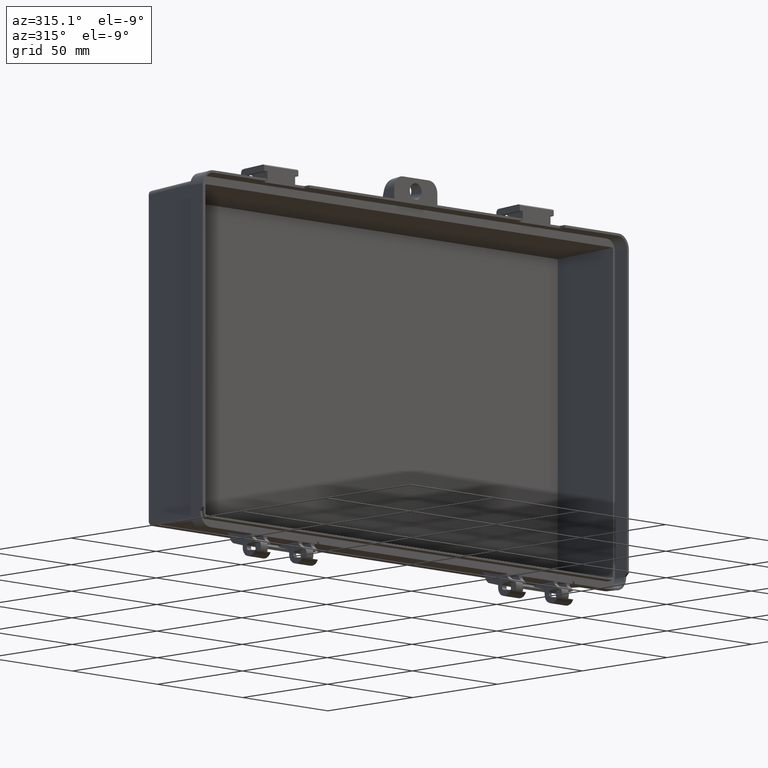
[diagram: clean part render]
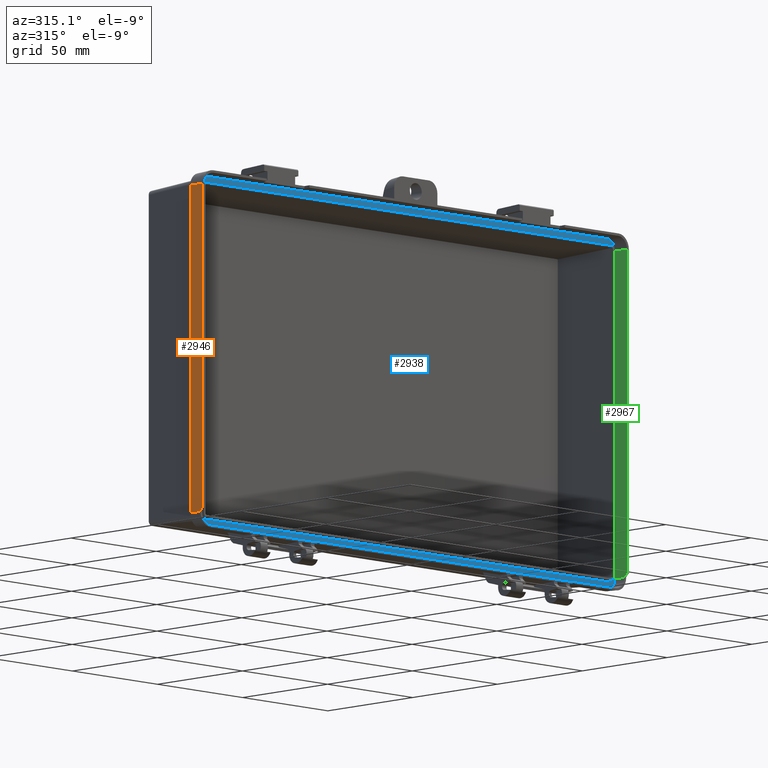
[diagram: same view with three faces highlighted in distinct colors, each labeled with its STEP entity id]
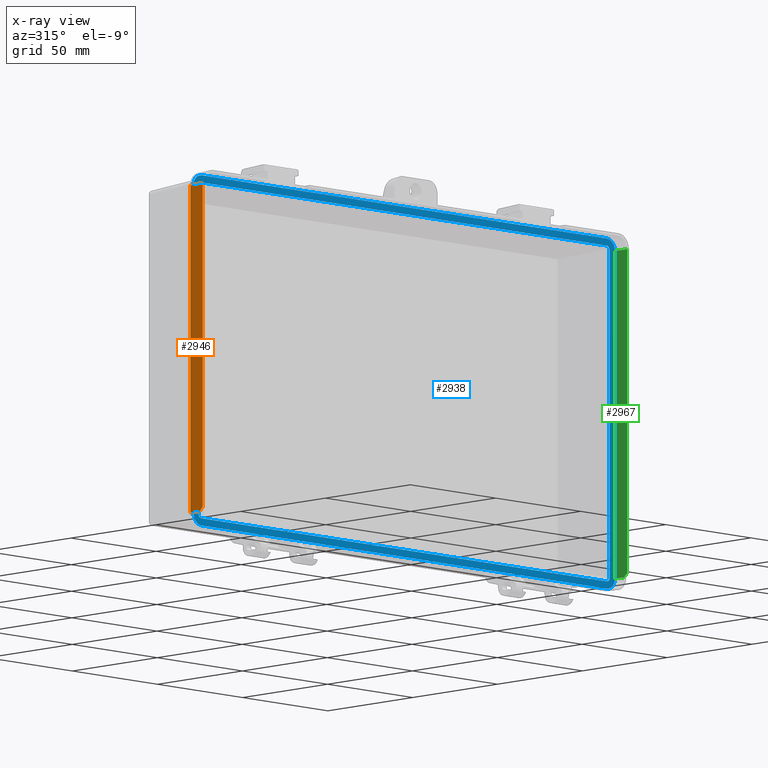
[diagram: x-ray of the same camera — body ghosted, the three highlighted faces saturated]
A machine part, auxiliary view with three faces highlighted in distinct colors.
The next image is the same camera in x-ray (body ghosted, the three faces saturated) — at least one of them is partly hidden behind the body in this view.
Their STEP definitions:

[orange] entity #2946 — the highlighted planar face has unit normal (-0.9986, 0.0523, 0).
#16 = VERTEX_POINT ( 'NONE', #3828 ) ;
#350 = CARTESIAN_POINT ( 'NONE',  ( -125.0524077792830000, -0.9999999999999831200, -68.73550952893730000 ) ) ;
#393 = CARTESIAN_POINT ( 'NONE',  ( -124.7221525821517600, 5.301644558294509800, 68.99999999999998600 ) ) ;
#579 = VERTEX_POINT ( 'NONE', #393 ) ;
#604 = VERTEX_POINT ( 'NONE', #350 ) ;
#616 = ORIENTED_EDGE ( 'NONE', *, *, #2498, .T. ) ;
#623 = ORIENTED_EDGE ( 'NONE', *, *, #2538, .F. ) ;
#697 = ORIENTED_EDGE ( 'NONE', *, *, #13428, .F. ) ;
#711 = ORIENTED_EDGE ( 'NONE', *, *, #13474, .T. ) ;
#714 = ORIENTED_EDGE ( 'NONE', *, *, #13450, .T. ) ;
#755 = ORIENTED_EDGE ( 'NONE', *, *, #13432, .F. ) ;
#2498 = EDGE_CURVE ( 'NONE', #13790, #16, #9550, .T. ) ;
#2538 = EDGE_CURVE ( 'NONE', #13759, #13806, #9579, .T. ) ;
#2946 = ADVANCED_FACE ( 'NONE', ( #4580 ), #5373, .T. ) ;
#3828 = CARTESIAN_POINT ( 'NONE',  ( -125.0524077792830000, -0.9999999999999831200, -68.99999999999998600 ) ) ;
#4072 = VECTOR ( 'NONE', #7004, 1000.000000000000100 ) ;
#4143 = VECTOR ( 'NONE', #6828, 1000.000000000000000 ) ;
#4580 = FACE_OUTER_BOUND ( 'NONE', #13484, .T. ) ;
#5373 = PLANE ( 'NONE',  #11806 ) ;
#5374 = CARTESIAN_POINT ( 'NONE',  ( -124.9999999999999700, 0.0000000000000000000, -68.99999999999998600 ) ) ;
#5375 = DIRECTION ( 'NONE',  ( -0.9986295347545739400, 0.05233595624294395300, 0.0000000000000000000 ) ) ;
#5376 = DIRECTION ( 'NONE',  ( -0.05233595624294395300, -0.9986295347545739400, 0.0000000000000000000 ) ) ;
#6800 = CARTESIAN_POINT ( 'NONE',  ( -125.1310194482076500, -2.500000000000000000, 68.99999999999998600 ) ) ;
#6828 = DIRECTION ( 'NONE',  ( 1.005636797667714400E-016, 0.0000000000000000000, -1.000000000000000000 ) ) ;
#6896 = CARTESIAN_POINT ( 'NONE',  ( -124.9999999999999700, 0.0000000000000000000, -68.99999999999998600 ) ) ;
#7004 = DIRECTION ( 'NONE',  ( -0.05233595624294395300, -0.9986295347545739400, -0.0000000000000000000 ) ) ;
#8461 = CARTESIAN_POINT ( 'NONE',  ( -125.0000000000000000, -3.626559582763564200E-016, 68.99999999999998600 ) ) ;
#8462 = DIRECTION ( 'NONE',  ( -0.05233595624294395300, -0.9986295347545739400, -0.0000000000000000000 ) ) ;
#8482 = CARTESIAN_POINT ( 'NONE',  ( -125.0524077792830000, -0.9999999999999831200, -68.99999999999998600 ) ) ;
#8483 = DIRECTION ( 'NONE',  ( 6.273334786060752500E-018, 1.197023585407051700E-016, -1.000000000000000000 ) ) ;
#8538 = CARTESIAN_POINT ( 'NONE',  ( -124.7221525821517400, 5.301644558294508000, -68.99999999999998600 ) ) ;
#8539 = DIRECTION ( 'NONE',  ( -0.0000000000000000000, -0.0000000000000000000, -1.000000000000000000 ) ) ;
#8591 = CARTESIAN_POINT ( 'NONE',  ( -125.0192467791621300, -0.3672504239915259600, -69.36825910494576400 ) ) ;
#8592 = DIRECTION ( 'NONE',  ( -0.03703247672027207300, -0.7066217501846229200, 0.7066217501846252500 ) ) ;
#8675 = CARTESIAN_POINT ( 'NONE',  ( -125.1310194482076500, -2.500000000000000000, 68.99999999999998600 ) ) ;
#8683 = CARTESIAN_POINT ( 'NONE',  ( -124.7221525821517400, 5.301644558294508000, -68.99999999999998600 ) ) ;
#8687 = CARTESIAN_POINT ( 'NONE',  ( -125.1310194482076500, -2.500000000000000000, -67.23550952893730000 ) ) ;
#8834 = VECTOR ( 'NONE', #8462, 1000.000000000000100 ) ;
#8837 = VECTOR ( 'NONE', #8483, 1000.000000000000000 ) ;
#8852 = VECTOR ( 'NONE', #8539, 1000.000000000000000 ) ;
#8874 = VECTOR ( 'NONE', #8592, 1000.000000000000000 ) ;
#8956 = LINE ( 'NONE', #8461, #8834 ) ;
#8958 = LINE ( 'NONE', #8482, #8837 ) ;
#8973 = LINE ( 'NONE', #8538, #8852 ) ;
#8994 = LINE ( 'NONE', #8591, #8874 ) ;
#9550 = LINE ( 'NONE', #6896, #4072 ) ;
#9579 = LINE ( 'NONE', #6800, #4143 ) ;
#11806 = AXIS2_PLACEMENT_3D ( 'NONE', #5374, #5375, #5376 ) ;
#13428 = EDGE_CURVE ( 'NONE', #579, #13759, #8956, .T. ) ;
#13432 = EDGE_CURVE ( 'NONE', #604, #16, #8958, .T. ) ;
#13450 = EDGE_CURVE ( 'NONE', #579, #13790, #8973, .T. ) ;
#13474 = EDGE_CURVE ( 'NONE', #604, #13806, #8994, .T. ) ;
#13484 = EDGE_LOOP ( 'NONE', ( #755, #711, #623, #697, #714, #616 ) ) ;
#13759 = VERTEX_POINT ( 'NONE', #8675 ) ;
#13790 = VERTEX_POINT ( 'NONE', #8683 ) ;
#13806 = VERTEX_POINT ( 'NONE', #8687 ) ;

[blue] entity #2938 — the highlighted planar face has unit normal (0, -1, 0).
#422 = CARTESIAN_POINT ( 'NONE',  ( -120.7194994386596400, 4.400000000000012800, 69.02018467128264900 ) ) ;
#426 = CARTESIAN_POINT ( 'NONE',  ( -119.0201846712820400, 4.400000000000020800, 70.71949943865971000 ) ) ;
#438 = VERTEX_POINT ( 'NONE', #3824 ) ;
#463 = VERTEX_POINT ( 'NONE', #3906 ) ;
#516 = VERTEX_POINT ( 'NONE', #3844 ) ;
#571 = VERTEX_POINT ( 'NONE', #422 ) ;
#580 = VERTEX_POINT ( 'NONE', #426 ) ;
#955 = VERTEX_POINT ( 'NONE', #6518 ) ;
#979 = VERTEX_POINT ( 'NONE', #6746 ) ;
#1038 = VERTEX_POINT ( 'NONE', #6657 ) ;
#1095 = VERTEX_POINT ( 'NONE', #6391 ) ;
#1108 = VERTEX_POINT ( 'NONE', #6644 ) ;
#2443 = EDGE_CURVE ( 'NONE', #13705, #13706, #9500, .T. ) ;
#2505 = EDGE_CURVE ( 'NONE', #13848, #13682, #9556, .T. ) ;
#2517 = EDGE_CURVE ( 'NONE', #13773, #13705, #4078, .T. ) ;
#2527 = EDGE_CURVE ( 'NONE', #13706, #13827, #4083, .T. ) ;
#2938 = ADVANCED_FACE ( 'NONE', ( #4557, #4558 ), #5289, .T. ) ;
#3521 = B_SPLINE_CURVE_WITH_KNOTS ( 'NONE', 3,
 ( #8375, #8376, #8377, #8378, #8379, #8380, #8381, #8382, #8383, #8384, #8385 ),
 .UNSPECIFIED., .F., .F.,
 ( 4, 1, 1, 1, 1, 1, 1, 1, 4 ),
 ( 0.0000000000000000000, 0.1399999999999835300, 0.2799999999999943600, 0.4199999999999883800, 0.5600000000000121500, 0.6699999999938605100, 0.7799999999999880400, 0.8899999999999694800, 1.000000000000000000 ),
 .UNSPECIFIED. ) ;
#3525 = B_SPLINE_CURVE_WITH_KNOTS ( 'NONE', 3,
 ( #8362, #8363, #8364, #8365, #8366, #8367, #8368, #8369, #8370, #8371, #8372 ),
 .UNSPECIFIED., .F., .F.,
 ( 4, 1, 1, 1, 1, 1, 1, 1, 4 ),
 ( 0.0000000000000000000, 0.1399999999999924900, 0.2799999999999939800, 0.4200000000000097000, 0.5599999999999894000, 0.6699999999938627300, 0.7799999999999879300, 0.8900000000000096700, 1.000000000000000000 ),
 .UNSPECIFIED. ) ;
#3538 = B_SPLINE_CURVE_WITH_KNOTS ( 'NONE', 3,
 ( #8349, #8350, #8351, #8352, #8353, #8354, #8355, #8356, #8357, #8358, #8359 ),
 .UNSPECIFIED., .F., .F.,
 ( 4, 1, 1, 1, 1, 1, 1, 1, 4 ),
 ( 0.0000000000000000000, 0.1400000000000253000, 0.2800000000000007500, 0.4200000000000083100, 0.5599999999999765200, 0.6699999999938340800, 0.7800000000000130200, 0.8900000000000478600, 1.000000000000000000 ),
 .UNSPECIFIED. ) ;
#3561 = B_SPLINE_CURVE_WITH_KNOTS ( 'NONE', 3,
 ( #8388, #8389, #8390, #8391, #8392, #8393, #8394, #8395, #8396, #8397, #8398 ),
 .UNSPECIFIED., .F., .F.,
 ( 4, 1, 1, 1, 1, 1, 1, 1, 4 ),
 ( 0.0000000000000000000, 0.1399999999999796400, 0.2800000000000421600, 0.4199999999999869400, 0.5600000000000232600, 0.6699999999938735000, 0.7800000000000039100, 0.8900000000000205500, 1.000000000000000000 ),
 .UNSPECIFIED. ) ;
#3824 = CARTESIAN_POINT ( 'NONE',  ( 119.0201846712821200, 4.400000000000005700, -70.71949943865971000 ) ) ;
#3844 = CARTESIAN_POINT ( 'NONE',  ( 120.7194994386596800, 4.400000000000000400, -69.02018467128247900 ) ) ;
#3906 = CARTESIAN_POINT ( 'NONE',  ( 123.7694057711545800, 4.400000000000000400, 68.99999999999998600 ) ) ;
#4057 = VECTOR ( 'NONE', #7016, 1000.000000000000000 ) ;
#4078 = CIRCLE ( 'NONE', #4081, 4.769405771154603200 ) ;
#4081 = AXIS2_PLACEMENT_3D ( 'NONE', #6875, #6995, #6966 ) ;
#4083 = CIRCLE ( 'NONE', #4131, 4.769405771154616500 ) ;
#4125 = VECTOR ( 'NONE', #6720, 1000.000000000000000 ) ;
#4131 = AXIS2_PLACEMENT_3D ( 'NONE', #6955, #6850, #7005 ) ;
#4557 = FACE_OUTER_BOUND ( 'NONE', #13783, .T. ) ;
#4558 = FACE_BOUND ( 'NONE', #13697, .T. ) ;
#5289 = PLANE ( 'NONE',  #11774 ) ;
#5290 = CARTESIAN_POINT ( 'NONE',  ( 119.0000000000000100, 4.400000000000000400, 68.99999999999998600 ) ) ;
#5291 = DIRECTION ( 'NONE',  ( 0.0000000000000000000, -1.000000000000000000, 0.0000000000000000000 ) ) ;
#5292 = DIRECTION ( 'NONE',  ( 0.0000000000000000000, -0.0000000000000000000, -1.000000000000000000 ) ) ;
#6391 = CARTESIAN_POINT ( 'NONE',  ( -120.7194994386596400, 4.400000000000012800, -69.02018467128215200 ) ) ;
#6518 = CARTESIAN_POINT ( 'NONE',  ( -123.7694057711546200, 4.400000000000000400, 68.99999999999998600 ) ) ;
#6644 = CARTESIAN_POINT ( 'NONE',  ( 120.7194994386596700, 4.400000000000000400, 69.02018467128233700 ) ) ;
#6657 = CARTESIAN_POINT ( 'NONE',  ( 119.0201846712823500, 4.400000000000000400, 70.71949943865969600 ) ) ;
#6706 = CARTESIAN_POINT ( 'NONE',  ( 119.0000000000000100, 4.400000000000000400, -73.76940577115458100 ) ) ;
#6720 = DIRECTION ( 'NONE',  ( 1.000000000000000000, 0.0000000000000000000, 0.0000000000000000000 ) ) ;
#6746 = CARTESIAN_POINT ( 'NONE',  ( -119.0201846712825500, 4.400000000000005700, -70.71949943865971000 ) ) ;
#6844 = CARTESIAN_POINT ( 'NONE',  ( 119.0000000000000100, 4.400000000000000400, 73.76940577115458100 ) ) ;
#6850 = DIRECTION ( 'NONE',  ( 0.0000000000000000000, -1.000000000000000000, 0.0000000000000000000 ) ) ;
#6875 = CARTESIAN_POINT ( 'NONE',  ( -119.0000000000000100, 4.400000000000000400, -68.99999999999998600 ) ) ;
#6955 = CARTESIAN_POINT ( 'NONE',  ( 119.0000000000000100, 4.400000000000000400, -68.99999999999998600 ) ) ;
#6966 = DIRECTION ( 'NONE',  ( 0.0000000000000000000, 0.0000000000000000000, -1.000000000000000000 ) ) ;
#6995 = DIRECTION ( 'NONE',  ( 0.0000000000000000000, -1.000000000000000000, 0.0000000000000000000 ) ) ;
#7005 = DIRECTION ( 'NONE',  ( 0.0000000000000000000, 0.0000000000000000000, -1.000000000000000000 ) ) ;
#7016 = DIRECTION ( 'NONE',  ( -1.000000000000000000, 0.0000000000000000000, 1.166200656118862000E-016 ) ) ;
#8337 = CARTESIAN_POINT ( 'NONE',  ( 119.0000000000000100, 4.400000000000000400, 68.99999999999998600 ) ) ;
#8338 = DIRECTION ( 'NONE',  ( 0.0000000000000000000, -1.000000000000000000, 0.0000000000000000000 ) ) ;
#8339 = DIRECTION ( 'NONE',  ( 0.0000000000000000000, 0.0000000000000000000, -1.000000000000000000 ) ) ;
#8340 = CARTESIAN_POINT ( 'NONE',  ( -119.0000000000000100, 4.400000000000000400, 68.99999999999998600 ) ) ;
#8341 = DIRECTION ( 'NONE',  ( 0.0000000000000000000, -1.000000000000000000, 0.0000000000000000000 ) ) ;
#8342 = DIRECTION ( 'NONE',  ( 0.0000000000000000000, 0.0000000000000000000, -1.000000000000000000 ) ) ;
#8343 = CARTESIAN_POINT ( 'NONE',  ( -123.7694057711546200, 4.400000000000000400, 68.99999999999992900 ) ) ;
#8344 = DIRECTION ( 'NONE',  ( 3.016910393003143800E-016, 0.0000000000000000000, -1.000000000000000000 ) ) ;
#8345 = CARTESIAN_POINT ( 'NONE',  ( 123.7694057711545800, 4.400000000000000400, 68.99999999999998600 ) ) ;
#8346 = DIRECTION ( 'NONE',  ( -3.016910393003143800E-016, 0.0000000000000000000, 1.000000000000000000 ) ) ;
#8347 = CARTESIAN_POINT ( 'NONE',  ( -120.7194994386596400, 4.400000000000012800, -69.02018467128215200 ) ) ;
#8348 = DIRECTION ( 'NONE',  ( 0.0000000000000000000, 0.0000000000000000000, 1.000000000000000000 ) ) ;
#8349 = CARTESIAN_POINT ( 'NONE',  ( -120.7194994386596400, 4.400000000000012800, 69.02018467128264900 ) ) ;
#8350 = CARTESIAN_POINT ( 'NONE',  ( -120.7194994386596000, 4.400000000000019900, 69.13617567322330600 ) ) ;
#8351 = CARTESIAN_POINT ( 'NONE',  ( -120.6967184270742300, 4.400000000000029700, 69.36678632132466800 ) ) ;
#8352 = CARTESIAN_POINT ( 'NONE',  ( -120.5821789513088000, 4.400000000000030600, 69.72574467749308300 ) ) ;
#8353 = CARTESIAN_POINT ( 'NONE',  ( -120.3823881399130300, 4.400000000000019900, 70.06154282737433900 ) ) ;
#8354 = CARTESIAN_POINT ( 'NONE',  ( -120.1259434806461400, 4.400000000000035900, 70.32681777469571200 ) ) ;
#8355 = CARTESIAN_POINT ( 'NONE',  ( -119.8469567738287500, 4.400000000000019900, 70.51528320480066700 ) ) ;
#8356 = CARTESIAN_POINT ( 'NONE',  ( -119.5721384384311800, 4.400000000000019900, 70.63649789084058700 ) ) ;
#8357 = CARTESIAN_POINT ( 'NONE',  ( -119.2907663207907700, 4.400000000000032300, 70.70552766913648700 ) ) ;
#8358 = CARTESIAN_POINT ( 'NONE',  ( -119.1107030366297300, 4.400000000000020800, 70.71949943865969600 ) ) ;
#8359 = CARTESIAN_POINT ( 'NONE',  ( -119.0201846712820400, 4.400000000000020800, 70.71949943865971000 ) ) ;
#8360 = CARTESIAN_POINT ( 'NONE',  ( 119.0201846712823500, 4.400000000000000400, 70.71949943865969600 ) ) ;
#8361 = DIRECTION ( 'NONE',  ( -1.000000000000000000, -0.0000000000000000000, -0.0000000000000000000 ) ) ;
#8362 = CARTESIAN_POINT ( 'NONE',  ( 119.0201846712823500, 4.400000000000000400, 70.71949943865969600 ) ) ;
#8363 = CARTESIAN_POINT ( 'NONE',  ( 119.1361756732229400, 4.400000000000001200, 70.71949943865972400 ) ) ;
#8364 = CARTESIAN_POINT ( 'NONE',  ( 119.3667863213242000, 4.400000000000006600, 70.69671842707437300 ) ) ;
#8365 = CARTESIAN_POINT ( 'NONE',  ( 119.7257446774927300, 4.399999999999987900, 70.58217895130897500 ) ) ;
#8366 = CARTESIAN_POINT ( 'NONE',  ( 120.0615428273742100, 4.400000000000012800, 70.38238813991321800 ) ) ;
#8367 = CARTESIAN_POINT ( 'NONE',  ( 120.3268177746955400, 4.400000000000003900, 70.12594348064628500 ) ) ;
#8368 = CARTESIAN_POINT ( 'NONE',  ( 120.5152832048007000, 4.400000000000004800, 69.84695677382869400 ) ) ;
#8369 = CARTESIAN_POINT ( 'NONE',  ( 120.6364978908405000, 4.399999999999996800, 69.57213843843156600 ) ) ;
#8370 = CARTESIAN_POINT ( 'NONE',  ( 120.7055276691363600, 4.400000000000017200, 69.29076632079107900 ) ) ;
#8371 = CARTESIAN_POINT ( 'NONE',  ( 120.7194994386596800, 4.400000000000001200, 69.11070303663002800 ) ) ;
#8372 = CARTESIAN_POINT ( 'NONE',  ( 120.7194994386596700, 4.400000000000000400, 69.02018467128233700 ) ) ;
#8373 = CARTESIAN_POINT ( 'NONE',  ( 120.7194994386596700, 4.400000000000000400, 69.02018467128233700 ) ) ;
#8374 = DIRECTION ( 'NONE',  ( 1.005342703291017200E-016, 0.0000000000000000000, -1.000000000000000000 ) ) ;
#8375 = CARTESIAN_POINT ( 'NONE',  ( 120.7194994386596800, 4.400000000000000400, -69.02018467128247900 ) ) ;
#8376 = CARTESIAN_POINT ( 'NONE',  ( 120.7194994386596100, 4.400000000000006600, -69.13617567322312100 ) ) ;
#8377 = CARTESIAN_POINT ( 'NONE',  ( 120.6967184270742300, 4.400000000000005700, -69.36678632132448300 ) ) ;
#8378 = CARTESIAN_POINT ( 'NONE',  ( 120.5821789513088800, 4.400000000000010100, -69.72574467749306800 ) ) ;
#8379 = CARTESIAN_POINT ( 'NONE',  ( 120.3823881399130300, 4.399999999999999500, -70.06154282737441000 ) ) ;
#8380 = CARTESIAN_POINT ( 'NONE',  ( 120.1259434806462800, 4.400000000000024300, -70.32681777469551300 ) ) ;
#8381 = CARTESIAN_POINT ( 'NONE',  ( 119.8469567738286700, 4.400000000000002100, -70.51528320480080900 ) ) ;
#8382 = CARTESIAN_POINT ( 'NONE',  ( 119.5721384384313000, 4.400000000000003900, -70.63649789084057300 ) ) ;
#8383 = CARTESIAN_POINT ( 'NONE',  ( 119.2907663207910800, 4.400000000000018100, -70.70552766913648700 ) ) ;
#8384 = CARTESIAN_POINT ( 'NONE',  ( 119.1107030366298700, 4.400000000000006600, -70.71949943865971000 ) ) ;
#8385 = CARTESIAN_POINT ( 'NONE',  ( 119.0201846712821200, 4.400000000000005700, -70.71949943865971000 ) ) ;
#8386 = CARTESIAN_POINT ( 'NONE',  ( 119.0201846712821200, 4.400000000000005700, -70.71949943865971000 ) ) ;
#8387 = DIRECTION ( 'NONE',  ( -1.000000000000000000, 0.0000000000000000000, 0.0000000000000000000 ) ) ;
#8388 = CARTESIAN_POINT ( 'NONE',  ( -119.0201846712825500, 4.400000000000005700, -70.71949943865971000 ) ) ;
#8389 = CARTESIAN_POINT ( 'NONE',  ( -119.1361756732231600, 4.400000000000011900, -70.71949943865968200 ) ) ;
#8390 = CARTESIAN_POINT ( 'NONE',  ( -119.3667863213246000, 4.400000000000024300, -70.69671842707427300 ) ) ;
#8391 = CARTESIAN_POINT ( 'NONE',  ( -119.7257446774928800, 4.399999999999988800, -70.58217895130893300 ) ) ;
#8392 = CARTESIAN_POINT ( 'NONE',  ( -120.0615428273744200, 4.400000000000025200, -70.38238813991297600 ) ) ;
#8393 = CARTESIAN_POINT ( 'NONE',  ( -120.3268177746954100, 4.400000000000021700, -70.12594348064641300 ) ) ;
#8394 = CARTESIAN_POINT ( 'NONE',  ( -120.5152832048007700, 4.400000000000009200, -69.84695677382855200 ) ) ;
#8395 = CARTESIAN_POINT ( 'NONE',  ( -120.6364978908405200, 4.400000000000019900, -69.57213843843146600 ) ) ;
#8396 = CARTESIAN_POINT ( 'NONE',  ( -120.7055276691363700, 4.400000000000023400, -69.29076632079089400 ) ) ;
#8397 = CARTESIAN_POINT ( 'NONE',  ( -120.7194994386596400, 4.400000000000012800, -69.11070303662985700 ) ) ;
#8398 = CARTESIAN_POINT ( 'NONE',  ( -120.7194994386596400, 4.400000000000012800, -69.02018467128215200 ) ) ;
#8655 = CARTESIAN_POINT ( 'NONE',  ( -119.0000000000000100, 4.400000000000000400, 73.76940577115460900 ) ) ;
#8663 = CARTESIAN_POINT ( 'NONE',  ( -119.0000000000000100, 4.400000000000000400, -73.76940577115459500 ) ) ;
#8664 = CARTESIAN_POINT ( 'NONE',  ( 119.0000000000000100, 4.400000000000000400, -73.76940577115460900 ) ) ;
#8678 = CARTESIAN_POINT ( 'NONE',  ( -123.7694057711545800, 4.400000000000000400, -68.99999999999998600 ) ) ;
#8696 = CARTESIAN_POINT ( 'NONE',  ( 123.7694057711546200, 4.400000000000000400, -68.99999999999998600 ) ) ;
#8704 = CARTESIAN_POINT ( 'NONE',  ( 119.0000000000000100, 4.400000000000000400, 73.76940577115456700 ) ) ;
#8814 = CIRCLE ( 'NONE', #8819, 4.769405771154616500 ) ;
#8815 = CIRCLE ( 'NONE', #8818, 4.769405771154589000 ) ;
#8818 = AXIS2_PLACEMENT_3D ( 'NONE', #8337, #8338, #8339 ) ;
#8819 = AXIS2_PLACEMENT_3D ( 'NONE', #8340, #8341, #8342 ) ;
#8820 = VECTOR ( 'NONE', #8344, 1000.000000000000000 ) ;
#8821 = VECTOR ( 'NONE', #8346, 1000.000000000000000 ) ;
#8822 = VECTOR ( 'NONE', #8348, 1000.000000000000000 ) ;
#8823 = VECTOR ( 'NONE', #8361, 1000.000000000000000 ) ;
#8824 = VECTOR ( 'NONE', #8374, 1000.000000000000000 ) ;
#8825 = VECTOR ( 'NONE', #8387, 1000.000000000000000 ) ;
#8944 = LINE ( 'NONE', #8343, #8820 ) ;
#8945 = LINE ( 'NONE', #8345, #8821 ) ;
#8946 = LINE ( 'NONE', #8347, #8822 ) ;
#8947 = LINE ( 'NONE', #8360, #8823 ) ;
#8948 = LINE ( 'NONE', #8373, #8824 ) ;
#8949 = LINE ( 'NONE', #8386, #8825 ) ;
#9388 = ORIENTED_EDGE ( 'NONE', *, *, #9893, .T. ) ;
#9390 = ORIENTED_EDGE ( 'NONE', *, *, #9894, .T. ) ;
#9391 = ORIENTED_EDGE ( 'NONE', *, *, #2505, .T. ) ;
#9392 = ORIENTED_EDGE ( 'NONE', *, *, #2517, .T. ) ;
#9393 = ORIENTED_EDGE ( 'NONE', *, *, #9895, .T. ) ;
#9394 = ORIENTED_EDGE ( 'NONE', *, *, #2527, .T. ) ;
#9395 = ORIENTED_EDGE ( 'NONE', *, *, #2443, .T. ) ;
#9396 = ORIENTED_EDGE ( 'NONE', *, *, #9896, .T. ) ;
#9397 = ORIENTED_EDGE ( 'NONE', *, *, #9897, .T. ) ;
#9398 = ORIENTED_EDGE ( 'NONE', *, *, #9899, .F. ) ;
#9399 = ORIENTED_EDGE ( 'NONE', *, *, #9898, .T. ) ;
#9400 = ORIENTED_EDGE ( 'NONE', *, *, #9900, .T. ) ;
#9401 = ORIENTED_EDGE ( 'NONE', *, *, #9901, .T. ) ;
#9402 = ORIENTED_EDGE ( 'NONE', *, *, #9902, .T. ) ;
#9403 = ORIENTED_EDGE ( 'NONE', *, *, #9903, .T. ) ;
#9404 = ORIENTED_EDGE ( 'NONE', *, *, #9904, .T. ) ;
#9500 = LINE ( 'NONE', #6706, #4125 ) ;
#9556 = LINE ( 'NONE', #6844, #4057 ) ;
#9893 = EDGE_CURVE ( 'NONE', #463, #13848, #8815, .T. ) ;
#9894 = EDGE_CURVE ( 'NONE', #13682, #955, #8814, .T. ) ;
#9895 = EDGE_CURVE ( 'NONE', #955, #13773, #8944, .T. ) ;
#9896 = EDGE_CURVE ( 'NONE', #13827, #463, #8945, .T. ) ;
#9897 = EDGE_CURVE ( 'NONE', #1095, #571, #8946, .T. ) ;
#9898 = EDGE_CURVE ( 'NONE', #571, #580, #3538, .T. ) ;
#9899 = EDGE_CURVE ( 'NONE', #1038, #580, #8947, .T. ) ;
#9900 = EDGE_CURVE ( 'NONE', #1038, #1108, #3525, .T. ) ;
#9901 = EDGE_CURVE ( 'NONE', #1108, #516, #8948, .T. ) ;
#9902 = EDGE_CURVE ( 'NONE', #516, #438, #3521, .T. ) ;
#9903 = EDGE_CURVE ( 'NONE', #438, #979, #8949, .T. ) ;
#9904 = EDGE_CURVE ( 'NONE', #979, #1095, #3561, .T. ) ;
#11774 = AXIS2_PLACEMENT_3D ( 'NONE', #5290, #5291, #5292 ) ;
#13682 = VERTEX_POINT ( 'NONE', #8655 ) ;
#13697 = EDGE_LOOP ( 'NONE', ( #9397, #9399, #9398, #9400, #9401, #9402, #9403, #9404 ) ) ;
#13705 = VERTEX_POINT ( 'NONE', #8663 ) ;
#13706 = VERTEX_POINT ( 'NONE', #8664 ) ;
#13773 = VERTEX_POINT ( 'NONE', #8678 ) ;
#13783 = EDGE_LOOP ( 'NONE', ( #9388, #9391, #9390, #9393, #9392, #9395, #9394, #9396 ) ) ;
#13827 = VERTEX_POINT ( 'NONE', #8696 ) ;
#13848 = VERTEX_POINT ( 'NONE', #8704 ) ;

[green] entity #2967 — the highlighted planar face has unit normal (0.9986, 0.0523, 0).
#463 = VERTEX_POINT ( 'NONE', #3906 ) ;
#638 = ORIENTED_EDGE ( 'NONE', *, *, #2480, .T. ) ;
#752 = ORIENTED_EDGE ( 'NONE', *, *, #3657, .F. ) ;
#770 = ORIENTED_EDGE ( 'NONE', *, *, #2445, .T. ) ;
#786 = ORIENTED_EDGE ( 'NONE', *, *, #9896, .F. ) ;
#823 = ORIENTED_EDGE ( 'NONE', *, *, #3774, .F. ) ;
#843 = ORIENTED_EDGE ( 'NONE', *, *, #3755, .T. ) ;
#887 = VERTEX_POINT ( 'NONE', #6452 ) ;
#1088 = VERTEX_POINT ( 'NONE', #6729 ) ;
#1147 = VERTEX_POINT ( 'NONE', #6462 ) ;
#2445 = EDGE_CURVE ( 'NONE', #1088, #887, #9502, .T. ) ;
#2480 = EDGE_CURVE ( 'NONE', #13827, #13633, #9533, .T. ) ;
#2967 = ADVANCED_FACE ( 'NONE', ( #5811 ), #5599, .F. ) ;
#3657 = EDGE_CURVE ( 'NONE', #1147, #13633, #6218, .T. ) ;
#3755 = EDGE_CURVE ( 'NONE', #1147, #1088, #6319, .T. ) ;
#3774 = EDGE_CURVE ( 'NONE', #463, #887, #6325, .T. ) ;
#3906 = CARTESIAN_POINT ( 'NONE',  ( 123.7694057711545800, 4.400000000000000400, 68.99999999999998600 ) ) ;
#3986 = VECTOR ( 'NONE', #6923, 1000.000000000000100 ) ;
#4126 = VECTOR ( 'NONE', #6772, 1000.000000000000000 ) ;
#5599 = PLANE ( 'NONE',  #11885 ) ;
#5600 = CARTESIAN_POINT ( 'NONE',  ( 124.0000000000000100, 0.0000000000000000000, -68.99999999999998600 ) ) ;
#5601 = DIRECTION ( 'NONE',  ( 0.9986295347545739400, 0.05233595624294395300, 3.012775822160968800E-016 ) ) ;
#5602 = DIRECTION ( 'NONE',  ( -0.05233595624294395300, 0.9986295347545739400, 0.0000000000000000000 ) ) ;
#5811 = FACE_OUTER_BOUND ( 'NONE', #13890, .T. ) ;
#6218 = LINE ( 'NONE', #7574, #13286 ) ;
#6319 = LINE ( 'NONE', #8057, #13411 ) ;
#6325 = LINE ( 'NONE', #8132, #8749 ) ;
#6452 = CARTESIAN_POINT ( 'NONE',  ( 124.1310194482075400, -2.500000000000000000, 68.99999999999997200 ) ) ;
#6462 = CARTESIAN_POINT ( 'NONE',  ( 124.0524077792830600, -0.9999999999999831200, -68.73550952893731400 ) ) ;
#6729 = CARTESIAN_POINT ( 'NONE',  ( 124.1310194482075800, -2.500000000000000000, -67.23550952893728500 ) ) ;
#6771 = CARTESIAN_POINT ( 'NONE',  ( 124.1310194482075800, -2.500000000000000000, -69.00000000000000000 ) ) ;
#6772 = DIRECTION ( 'NONE',  ( -3.016910393003143400E-016, 0.0000000000000000000, 1.000000000000000000 ) ) ;
#6923 = DIRECTION ( 'NONE',  ( 0.05233595624294394600, -0.9986295347545739400, -0.0000000000000000000 ) ) ;
#7041 = CARTESIAN_POINT ( 'NONE',  ( 124.0000000000000100, 0.0000000000000000000, -68.99999999999998600 ) ) ;
#7574 = CARTESIAN_POINT ( 'NONE',  ( 124.0524077792830600, -0.9999999999999831200, -68.99999999999998600 ) ) ;
#7575 = DIRECTION ( 'NONE',  ( 2.954177045142536200E-016, 1.197023585407051700E-016, -1.000000000000000000 ) ) ;
#8057 = CARTESIAN_POINT ( 'NONE',  ( 124.0192467791621600, -0.3672504239915329600, -69.36825910494576400 ) ) ;
#8058 = DIRECTION ( 'NONE',  ( 0.03703247672027184400, -0.7066217501846225900, 0.7066217501846255900 ) ) ;
#8132 = CARTESIAN_POINT ( 'NONE',  ( 123.9999999999999700, 0.0000000000000000000, 68.99999999999998600 ) ) ;
#8133 = DIRECTION ( 'NONE',  ( 0.05233595624294395300, -0.9986295347545739400, 1.578928903170953400E-017 ) ) ;
#8345 = CARTESIAN_POINT ( 'NONE',  ( 123.7694057711545800, 4.400000000000000400, 68.99999999999998600 ) ) ;
#8346 = DIRECTION ( 'NONE',  ( -3.016910393003143800E-016, 0.0000000000000000000, 1.000000000000000000 ) ) ;
#8640 = CARTESIAN_POINT ( 'NONE',  ( 124.0524077792830600, -0.9999999999999831200, -68.99999999999998600 ) ) ;
#8696 = CARTESIAN_POINT ( 'NONE',  ( 123.7694057711546200, 4.400000000000000400, -68.99999999999998600 ) ) ;
#8749 = VECTOR ( 'NONE', #8133, 1000.000000000000100 ) ;
#8821 = VECTOR ( 'NONE', #8346, 1000.000000000000000 ) ;
#8945 = LINE ( 'NONE', #8345, #8821 ) ;
#9502 = LINE ( 'NONE', #6771, #4126 ) ;
#9533 = LINE ( 'NONE', #7041, #3986 ) ;
#9896 = EDGE_CURVE ( 'NONE', #13827, #463, #8945, .T. ) ;
#11885 = AXIS2_PLACEMENT_3D ( 'NONE', #5600, #5601, #5602 ) ;
#13286 = VECTOR ( 'NONE', #7575, 1000.000000000000000 ) ;
#13411 = VECTOR ( 'NONE', #8058, 1000.000000000000100 ) ;
#13633 = VERTEX_POINT ( 'NONE', #8640 ) ;
#13827 = VERTEX_POINT ( 'NONE', #8696 ) ;
#13890 = EDGE_LOOP ( 'NONE', ( #752, #843, #770, #823, #786, #638 ) ) ;